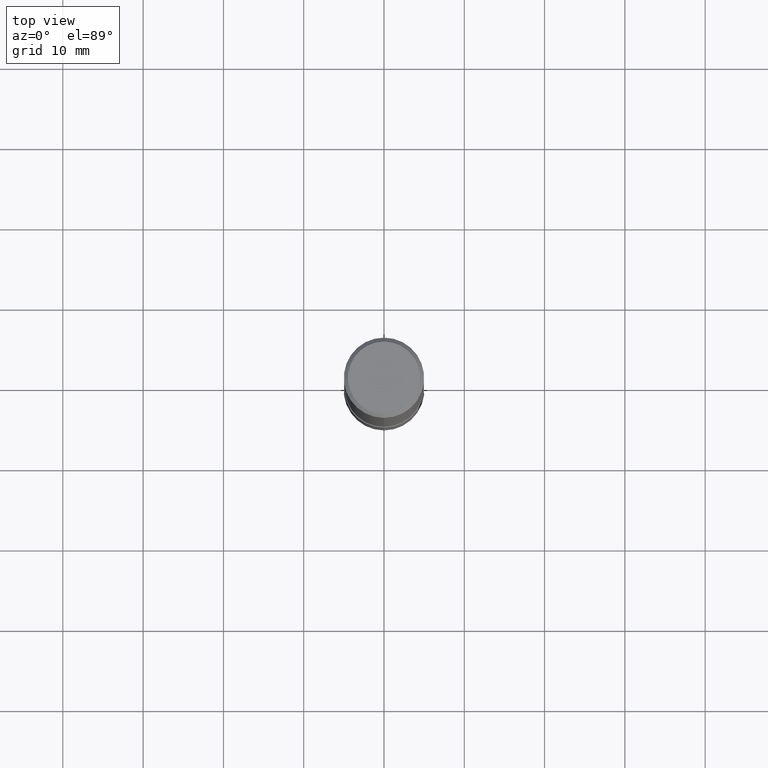
[diagram: clean part render]
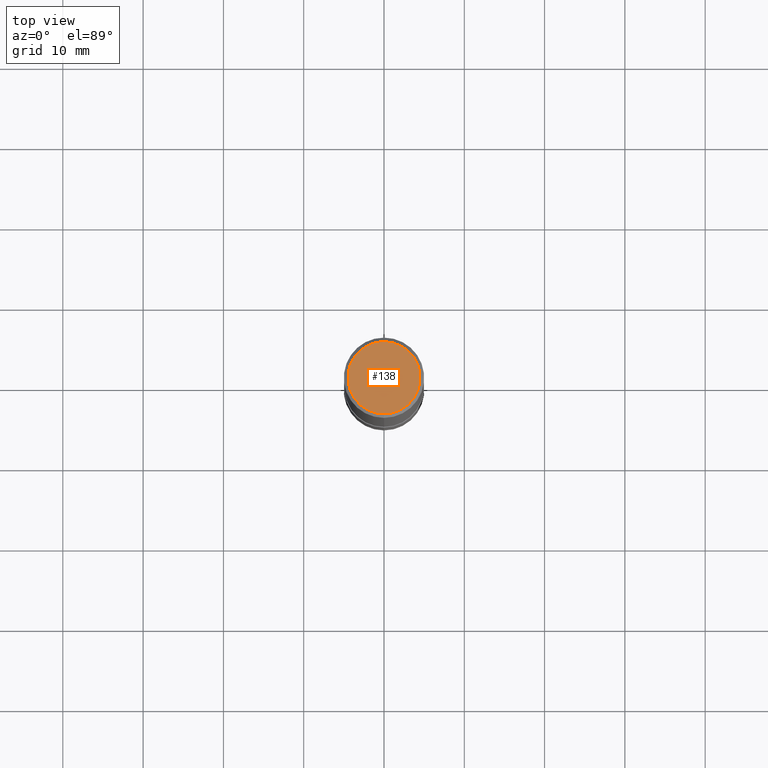
[diagram: same view with one face highlighted and labeled with its STEP entity id]
A machine part, top view. The second image highlights one B-rep face of the part: STEP entity #138.
In plain terms, the highlighted planar face has unit normal (-0, 0, 1).
Its self-contained STEP definition (entity closure, byte-faithful):
#86=EDGE_CURVE('',#120,#102,#207,.T.);
#102=VERTEX_POINT('',#224);
#120=VERTEX_POINT('',#243);
#138=ADVANCED_FACE('',(#264),#265,.T.);
#150=EDGE_CURVE('',#102,#120,#280,.T.);
#207=CIRCLE('',#336,4.5);
#224=CARTESIAN_POINT('',(5.5107285922007E-016,-4.5,0.0));
#243=CARTESIAN_POINT('',(0.0,4.5,0.0));
#264=FACE_OUTER_BOUND('',#403,.T.);
#265=PLANE('',#404);
#280=CIRCLE('',#421,4.5);
#336=AXIS2_PLACEMENT_3D('',#479,#480,#481);
#403=EDGE_LOOP('',(#539,#540));
#404=AXIS2_PLACEMENT_3D('',#541,#542,#543);
#421=AXIS2_PLACEMENT_3D('',#562,#563,#564);
#479=CARTESIAN_POINT('',(0.0,0.0,0.0));
#480=DIRECTION('',(0.0,0.0,-1.0));
#481=DIRECTION('',(0.0,1.0,0.0));
#539=ORIENTED_EDGE('',*,*,#86,.F.);
#540=ORIENTED_EDGE('',*,*,#150,.F.);
#541=CARTESIAN_POINT('',(0.0,2.25,0.0));
#542=DIRECTION('',(-0.0,0.0,1.0));
#543=DIRECTION('',(0.0,-1.0,0.0));
#562=CARTESIAN_POINT('',(0.0,0.0,0.0));
#563=DIRECTION('',(0.0,0.0,-1.0));
#564=DIRECTION('',(0.0,1.0,0.0));